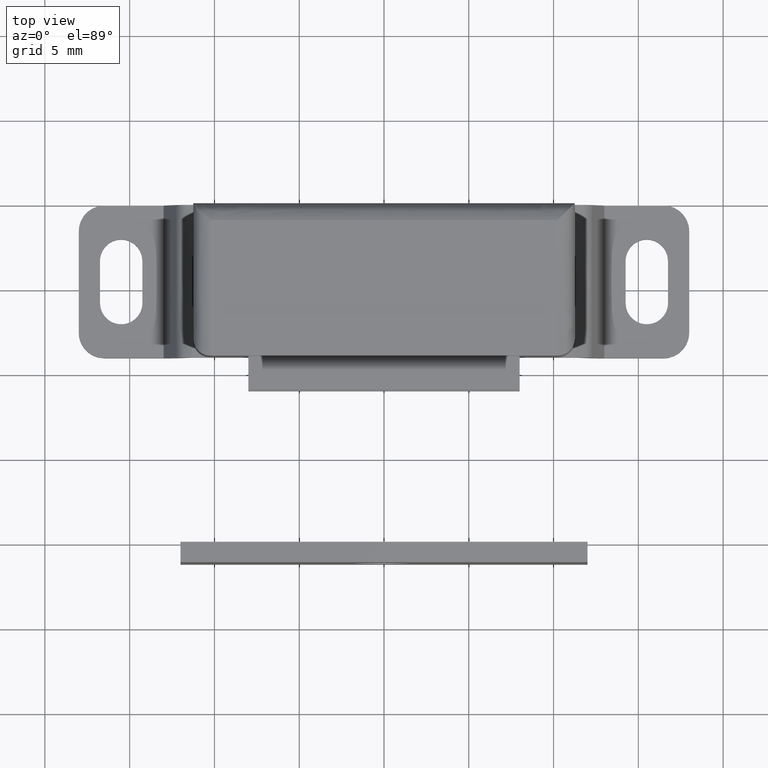
[diagram: clean part render]
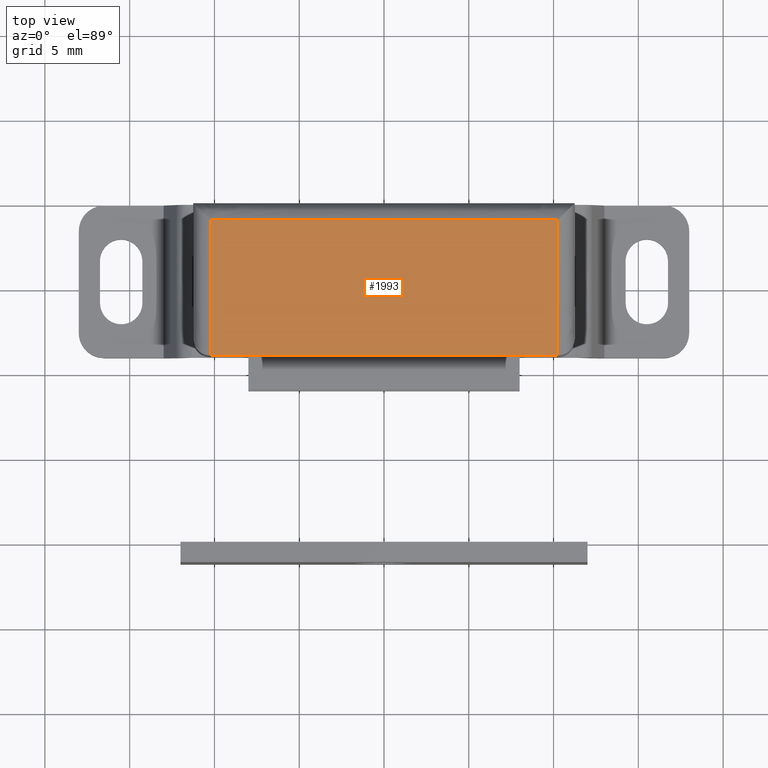
[diagram: same view with one face highlighted and labeled with its STEP entity id]
A machine part, top view. The second image highlights one B-rep face of the part: STEP entity #1993.
In plain terms, the highlighted face is a freeform B-spline surface patch.
Its self-contained STEP definition (entity closure, byte-faithful):
#1469=CARTESIAN_POINT('',(10.250000000000000,-9.000000000000108,10.0));
#1470=VERTEX_POINT('',#1469);
#1520=CARTESIAN_POINT('',(-10.250000000000000,-9.000000000000108,10.0));
#1521=VERTEX_POINT('',#1520);
#1847=CARTESIAN_POINT('',(-10.250000000000000,-1.0,10.0));
#1848=VERTEX_POINT('',#1847);
#1849=CARTESIAN_POINT('',(-10.250000000000000,-1.0,10.0));
#1850=CARTESIAN_POINT('',(-10.250000000000000,-9.000000000000108,10.0));
#1851=QUASI_UNIFORM_CURVE('',1,(#1849,#1850),.UNSPECIFIED.,.F.,.U.);
#1852=EDGE_CURVE('',#1848,#1521,#1851,.T.);
#1884=CARTESIAN_POINT('',(10.250000000000000,-1.0,10.0));
#1885=VERTEX_POINT('',#1884);
#1919=CARTESIAN_POINT('',(10.250000000000000,-1.0,10.0));
#1920=CARTESIAN_POINT('',(-10.250000000000000,-1.0,10.0));
#1921=QUASI_UNIFORM_CURVE('',1,(#1919,#1920),.UNSPECIFIED.,.F.,.U.);
#1922=EDGE_CURVE('',#1885,#1848,#1921,.T.);
#1941=CARTESIAN_POINT('',(10.250000000000000,-9.000000000000108,10.0));
#1942=CARTESIAN_POINT('',(10.250000000000000,-1.0,10.0));
#1943=QUASI_UNIFORM_CURVE('',1,(#1941,#1942),.UNSPECIFIED.,.F.,.U.);
#1944=EDGE_CURVE('',#1470,#1885,#1943,.T.);
#1978=CARTESIAN_POINT('',(-11.273974960267021,-9.399599984494561,10.0));
#1979=CARTESIAN_POINT('',(11.273975510119870,-9.399599984494561,10.0));
#1980=CARTESIAN_POINT('',(-11.273974960267021,-0.600399800928826,10.0));
#1981=CARTESIAN_POINT('',(11.273975510119870,-0.600399800928826,10.0));
#1982=B_SPLINE_SURFACE_WITH_KNOTS('',1,1,((#1978,#1980),(#1979,#1981)),.UNSPECIFIED.,.F.,.F.,.U.,(2,2),(2,2),(0.0,22.547950470386901),(0.0,8.799200183565734),.UNSPECIFIED.);
#1983=ORIENTED_EDGE('',*,*,#1922,.T.);
#1984=ORIENTED_EDGE('',*,*,#1852,.T.);
#1985=CARTESIAN_POINT('',(10.250000000000000,-9.000000000000108,10.0));
#1986=CARTESIAN_POINT('',(-10.250000000000000,-9.000000000000108,10.0));
#1987=QUASI_UNIFORM_CURVE('',1,(#1985,#1986),.UNSPECIFIED.,.F.,.U.);
#1988=EDGE_CURVE('',#1470,#1521,#1987,.T.);
#1989=ORIENTED_EDGE('',*,*,#1988,.F.);
#1990=ORIENTED_EDGE('',*,*,#1944,.T.);
#1991=EDGE_LOOP('',(#1983,#1984,#1989,#1990));
#1992=FACE_OUTER_BOUND('',#1991,.T.);
#1993=ADVANCED_FACE('',(#1992),#1982,.T.);